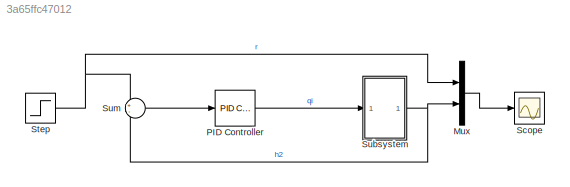
MODEL slx_3a65ffc47012
KIND model
CONFIG AbsTol = auto
CONFIG EnableMultiTasking = off
CONFIG FixedStep = auto
CONFIG MaxStep = auto
CONFIG MinStep = auto
CONFIG RelTol = 1e-3
CONFIG SampleTimeConstraint = Unconstrained
CONFIG SolverName = VariableStepAuto
CONFIG StartTime = 0.0
CONFIG StopTime = 700
BLOCK [Mux] Mux
  DisplayOption = bar
  Inputs = 2
  Ports = [2, 1]
BLOCK [Reference] PID Controller  REF=slpidlib/PID Controller
  Ports = [1, 1]
  SourceBlock = slpidlib/PID Controller
  SourceProductBaseCode = SL
  SourceType = PID 1dof
BLOCK [Scope] Scope
  Floating = off
  NumInputPorts = 1
  Ports = [1]
  ScopeSpecificationString = Simulink.scopes.TimeScopeBlockCfg('CurrentConfiguration', extmgr.ConfigurationSet(extmgr.Configuration('Core','General UI',true),extmgr.Configuration('Core','Source UI',true),extmgr.Configuration('Sources','WiredSimulink',true),extmgr.Configuration('Visuals','Time Domain',true,'SerializedDisplays',{struct('MinYLimReal','-0.12976','MaxYLimReal','1.16781','YLabelReal','','MinYLimMag','0.00000','MaxY...<+1353ch>
BLOCK [Step] Step
  SampleTime = 0
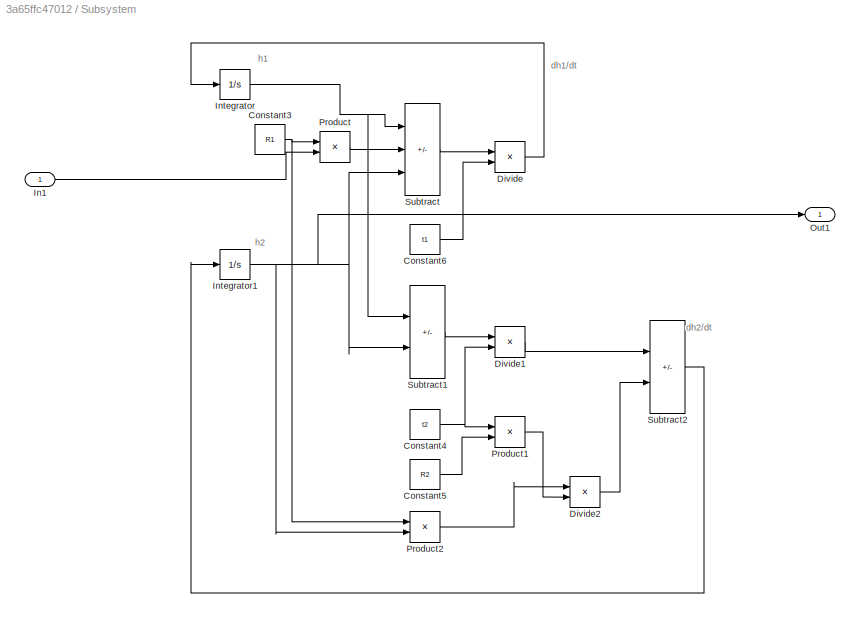
BLOCK [SubSystem] Subsystem
  Ports = [1, 1]
  RequestExecContextInheritance = off
BLOCK [Constant] Subsystem/Constant3
  Value = R1
BLOCK [Constant] Subsystem/Constant4
  Value = t2
BLOCK [Constant] Subsystem/Constant5
  Value = R2
BLOCK [Constant] Subsystem/Constant6
  Value = t1
BLOCK [Product] Subsystem/Divide
  Inputs = */
  Ports = [2, 1]
BLOCK [Product] Subsystem/Divide1
  Inputs = */
  Ports = [2, 1]
BLOCK [Product] Subsystem/Divide2
  Inputs = */
  Ports = [2, 1]
BLOCK [Inport] Subsystem/In1
BLOCK [Integrator] Subsystem/Integrator
  Ports = [1, 1]
BLOCK [Integrator] Subsystem/Integrator1
  Ports = [1, 1]
BLOCK [Outport] Subsystem/Out1
BLOCK [Product] Subsystem/Product
  Ports = [2, 1]
BLOCK [Product] Subsystem/Product1
  Ports = [2, 1]
BLOCK [Product] Subsystem/Product2
  Ports = [2, 1]
BLOCK [Sum] Subsystem/Subtract
  IconShape = rectangular
  Inputs = -++
  Ports = [3, 1]
BLOCK [Sum] Subsystem/Subtract1
  IconShape = rectangular
  Inputs = +-
  Ports = [2, 1]
BLOCK [Sum] Subsystem/Subtract2
  IconShape = rectangular
  Inputs = +-
  Ports = [2, 1]
BLOCK [Sum] Sum
  Inputs = +-
  Ports = [2, 1]
ANNOTATION Subsystem: dh2/dt
ANNOTATION Subsystem: h2
ANNOTATION Subsystem: h1
ANNOTATION Subsystem: dh1/dt
LINE Mux:1 -> Scope:1
LINE PID Controller:1 -> Subsystem:1
NET Step:1 -> Mux:1, Sum:1
NET Subsystem/Constant3:1 -> Subsystem/Product2:1, Subsystem/Product:1
NET Subsystem/Constant4:1 -> Subsystem/Divide1:2, Subsystem/Product1:1
LINE Subsystem/Constant5:1 -> Subsystem/Product1:2
LINE Subsystem/Constant6:1 -> Subsystem/Divide:2
LINE Subsystem/Divide1:1 -> Subsystem/Subtract2:1
LINE Subsystem/Divide2:1 -> Subsystem/Subtract2:2
LINE Subsystem/Divide:1 -> Subsystem/Integrator:1
LINE Subsystem/In1:1 -> Subsystem/Product:2
NET Subsystem/Integrator1:1 -> Subsystem/Out1:1, Subsystem/Product2:2, Subsystem/Subtract1:2, Subsystem/Subtract:3
NET Subsystem/Integrator:1 -> Subsystem/Subtract1:1, Subsystem/Subtract:1
LINE Subsystem/Product1:1 -> Subsystem/Divide2:2
LINE Subsystem/Product2:1 -> Subsystem/Divide2:1
LINE Subsystem/Product:1 -> Subsystem/Subtract:2
LINE Subsystem/Subtract1:1 -> Subsystem/Divide1:1
LINE Subsystem/Subtract2:1 -> Subsystem/Integrator1:1
LINE Subsystem/Subtract:1 -> Subsystem/Divide:1
NET Subsystem:1 -> Mux:2, Sum:2
LINE Sum:1 -> PID Controller:1
note: NET lines group one-source signal fan-out (src -> all destinations, sorted); 1:1 wires keep LINE
